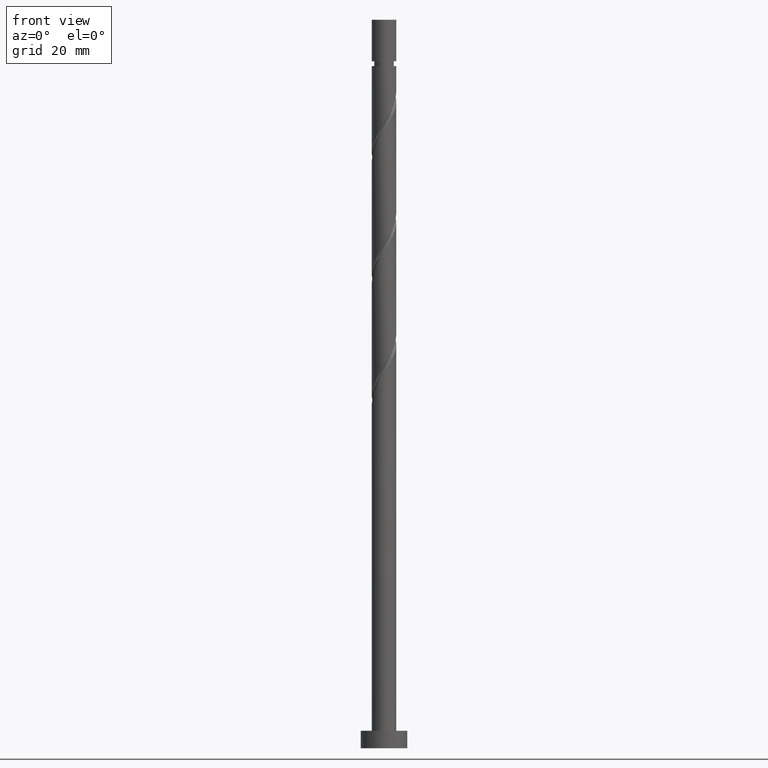
[diagram: clean part render]
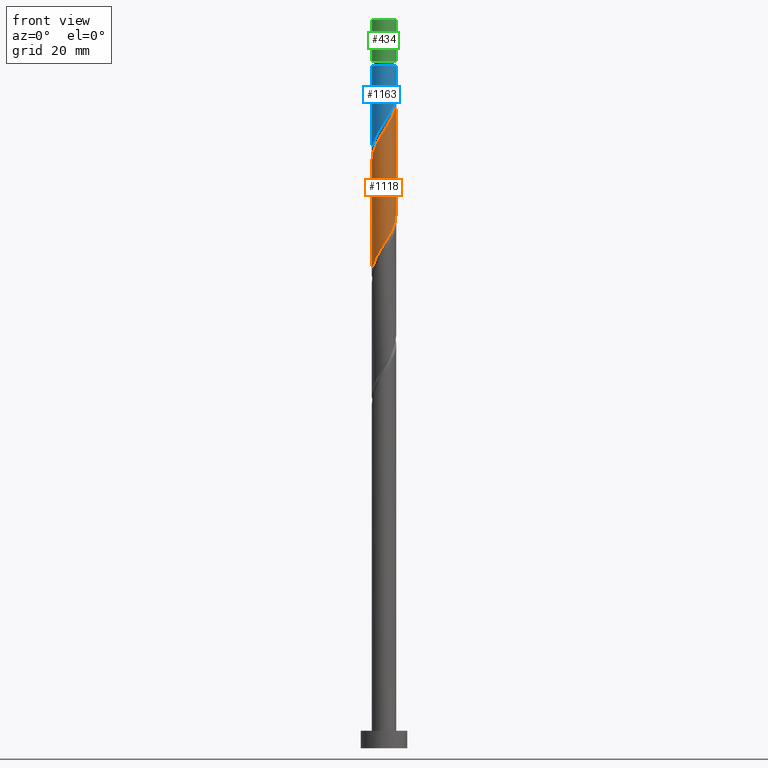
[diagram: same view with three faces highlighted in distinct colors, each labeled with its STEP entity id]
A machine part, front view with three faces highlighted in distinct colors.
Their STEP definitions:

[orange] entity #1118 — the highlighted cylindrical surface (edge-blend (fillet) strip) has radius 2.1 mm, axis along (-0, -0, -1).
#6 = CARTESIAN_POINT ( 'NONE',  ( 2.058000000000001162, -0.4178947235847809694, 91.00579383933641964 ) ) ;
#14 = CARTESIAN_POINT ( 'NONE',  ( 1.664463500085768155, -1.322947047055943237, 89.44329383933644806 ) ) ;
#22 = CARTESIAN_POINT ( 'NONE',  ( 1.419324618889668210, -1.547745982457618963, 88.92246050600309104 ) ) ;
#26 = LINE ( 'NONE', #522, #299 ) ;
#46 = CARTESIAN_POINT ( 'NONE',  ( -0.8715781159782031162, -1.910589329957617766, 104.5474605060030910 ) ) ;
#126 = CYLINDRICAL_SURFACE ( 'NONE', #1220, 2.100000000000000089 ) ;
#134 = CARTESIAN_POINT ( 'NONE',  ( 1.828137739088108171, -1.033398474414309876, 89.96412717266977666 ) ) ;
#156 = CARTESIAN_POINT ( 'NONE',  ( -0.5689704942628346362, -2.048633742055939955, 105.0682938393364338 ) ) ;
#165 = CARTESIAN_POINT ( 'NONE',  ( -1.991811978090451074, -0.7438499017726768470, 101.9432938393364623 ) ) ;
#205 = DIRECTION ( 'NONE',  ( -0.000000000000000000, -0.000000000000000000, -1.000000000000000000 ) ) ;
#224 = CARTESIAN_POINT ( 'NONE',  ( -1.033398474414309876, -1.828137739088108171, 84.75579383933646227 ) ) ;
#234 = LINE ( 'NONE', #1540, #1139 ) ;
#244 = CARTESIAN_POINT ( 'NONE',  ( 2.100000000000002309, -0.2110579412044274739, 91.33629170539887809 ) ) ;
#247 = EDGE_CURVE ( 'NONE', #1189, #564, #513, .T. ) ;
#253 = DIRECTION ( 'NONE',  ( -1.000000000000000000, 0.000000000000000000, 0.000000000000000000 ) ) ;
#258 = FACE_OUTER_BOUND ( 'NONE', #1325, .T. ) ;
#260 = CARTESIAN_POINT ( 'NONE',  ( 2.100000000000003197, 6.746896252442569669E-16, 111.1743247311995191 ) ) ;
#289 = CARTESIAN_POINT ( 'NONE',  ( -2.058000000000002938, -0.4178947235847807473, 101.4224605060030910 ) ) ;
#299 = VECTOR ( 'NONE', #755, 1000.000000000000000 ) ;
#353 = CARTESIAN_POINT ( 'NONE',  ( -2.048633742055936846, -0.5689704942628336370, 82.15162717266977666 ) ) ;
#376 = CARTESIAN_POINT ( 'NONE',  ( 2.048633742055939955, -0.5689704942628347473, 110.2766271726697624 ) ) ;
#386 = CARTESIAN_POINT ( 'NONE',  ( 0.5689704942628334150, -2.048633742055936846, 87.35996050600313367 ) ) ;
#391 = EDGE_CURVE ( 'NONE', #1189, #582, #26, .T. ) ;
#394 = CARTESIAN_POINT ( 'NONE',  ( -0.09193954539688516114, -2.124188021909553026, 86.31829383933643385 ) ) ;
#466 = CARTESIAN_POINT ( 'NONE',  ( -0.4178947235847808583, -2.058000000000001162, 85.79746050600309104 ) ) ;
#480 = VERTEX_POINT ( 'NONE', #1302 ) ;
#499 = CARTESIAN_POINT ( 'NONE',  ( 2.100000000000003642, -0.1196448486375056852, 110.9848136419922184 ) ) ;
#508 = CARTESIAN_POINT ( 'NONE',  ( 2.100000000000003197, 6.746896252442569669E-16, 111.1743247311995191 ) ) ;
#513 =( BOUNDED_CURVE ( )  B_SPLINE_CURVE ( 2, ( #850, #987, #289, #165, #1340, #861, #633, #531, #46, #156, #1445, #837, #514, #978, #969, #1117, #843, #964, #1326, #376, #1350, #499, #260 ),
 .UNSPECIFIED., .F., .T. ) 
 B_SPLINE_CURVE_WITH_KNOTS ( ( 3, 2, 2, 2, 2, 2, 2, 2, 2, 2, 2, 3 ),
 ( 0.5545322023138551382, 0.5625000000000000000, 0.5749999999999999556, 0.5875000000000000222, 0.5999999999999999778, 0.6125000000000000444, 0.6250000000000000000, 0.6374999999999999556, 0.6500000000000000222, 0.6624999999999999778, 0.6750000000000000444, 0.6795322023138553602 ),
 .UNSPECIFIED. ) 
 CURVE ( )  GEOMETRIC_REPRESENTATION_ITEM ( )  RATIONAL_B_SPLINE_CURVE ( ( 0.9039174447099406207, 0.9019565955404698077, 0.9090909090909183865, 0.8978984914501343395, 0.9090909090909183865, 0.8978984914501343395, 0.9090909090909183865, 0.8978984914501343395, 0.9090909090909183865, 0.8978984914501343395, 0.9090909090909183865, 0.8978984914501343395, 0.9090909090909183865, 0.8978984914501343395, 0.9090909090909183865, 0.8978984914501343395, 0.9090909090909183865, 0.8978984914501343395, 0.9090909090909183865, 0.8978984914501343395, 0.9090909090909183865, 0.9050328050005825853, 0.9039174447099405096 ) ) 
 REPRESENTATION_ITEM ( '' )  );
#514 = CARTESIAN_POINT ( 'NONE',  ( 0.4178947235847805808, -2.058000000000002938, 106.6307938393364481 ) ) ;
#522 = CARTESIAN_POINT ( 'NONE',  ( -2.100000000000000089, 0.000000000000000000, 125.0000000000000000 ) ) ;
#531 = CARTESIAN_POINT ( 'NONE',  ( -1.174185737693571152, -1.772544917859296465, 104.0266271726697624 ) ) ;
#564 = VERTEX_POINT ( 'NONE', #508 ) ;
#582 = VERTEX_POINT ( 'NONE', #1466 ) ;
#633 = CARTESIAN_POINT ( 'NONE',  ( -1.419324618889670875, -1.547745982457619851, 103.5057938393364338 ) ) ;
#671 = ORIENTED_EDGE ( 'NONE', *, *, #1264, .F. ) ;
#679 = CARTESIAN_POINT ( 'NONE',  ( -0.7438499017726766249, -1.991811978090447965, 85.27662717266979087 ) ) ;
#681 = CARTESIAN_POINT ( 'NONE',  ( 0.000000000000000000, 0.000000000000000000, 125.0000000000000000 ) ) ;
#755 = DIRECTION ( 'NONE',  ( -0.000000000000000000, -0.000000000000000000, -1.000000000000000000 ) ) ;
#787 = CARTESIAN_POINT ( 'NONE',  ( -1.772544917859294911, -1.174185737693569154, 83.19329383933643385 ) ) ;
#791 = CARTESIAN_POINT ( 'NONE',  ( -2.100000000000003197, -9.295723725587539688E-16, 100.7576580645328335 ) ) ;
#799 = CARTESIAN_POINT ( 'NONE',  ( -1.322947047055943015, -1.664463500085768377, 84.23496050600309104 ) ) ;
#837 = CARTESIAN_POINT ( 'NONE',  ( 0.09193954539688437011, -2.124188021909556134, 106.1099605060031195 ) ) ;
#843 = CARTESIAN_POINT ( 'NONE',  ( 1.547745982457619851, -1.419324618889670875, 108.7141271726697624 ) ) ;
#850 = CARTESIAN_POINT ( 'NONE',  ( -2.100000000000003197, -9.295723725587539688E-16, 100.7576580645328335 ) ) ;
#861 = CARTESIAN_POINT ( 'NONE',  ( -1.664463500085770375, -1.322947047055943903, 102.9849605060031337 ) ) ;
#903 = ORIENTED_EDGE ( 'NONE', *, *, #247, .F. ) ;
#921 = CARTESIAN_POINT ( 'NONE',  ( -2.100000000000000977, 2.488855062012162183E-15, 81.25392961414004844 ) ) ;
#964 = CARTESIAN_POINT ( 'NONE',  ( 1.772544917859296465, -1.174185737693571152, 109.2349605060031337 ) ) ;
#966 = CARTESIAN_POINT ( 'NONE',  ( 1.174185737693569154, -1.772544917859294911, 88.40162717266979087 ) ) ;
#969 = CARTESIAN_POINT ( 'NONE',  ( 1.033398474414310098, -1.828137739088110392, 107.6724605060030910 ) ) ;
#978 = CARTESIAN_POINT ( 'NONE',  ( 0.7438499017726768470, -1.991811978090451074, 107.1516271726697624 ) ) ;
#987 = CARTESIAN_POINT ( 'NONE',  ( -2.100000000000003642, -0.2110579412044328307, 101.0919626399406894 ) ) ;
#1034 = CARTESIAN_POINT ( 'NONE',  ( -2.086410881982745380, -0.2385154744329742726, 81.63079383933643385 ) ) ;
#1044 = CARTESIAN_POINT ( 'NONE',  ( -2.100000000000001421, -0.1196448486375048387, 81.44344070334733487 ) ) ;
#1049 = ORIENTED_EDGE ( 'NONE', *, *, #391, .T. ) ;
#1080 = CARTESIAN_POINT ( 'NONE',  ( 2.100000000000000533, 3.088579173340394367E-15, 91.67059628080669142 ) ) ;
#1117 = CARTESIAN_POINT ( 'NONE',  ( 1.322947047055943903, -1.664463500085770375, 108.1932938393364623 ) ) ;
#1118 = ADVANCED_FACE ( 'NONE', ( #258 ), #126, .T. ) ;
#1139 = VECTOR ( 'NONE', #205, 1000.000000000000000 ) ;
#1171 = CARTESIAN_POINT ( 'NONE',  ( -1.547745982457618963, -1.419324618889668210, 83.71412717266976244 ) ) ;
#1189 = VERTEX_POINT ( 'NONE', #791 ) ;
#1209 = CARTESIAN_POINT ( 'NONE',  ( 1.991811978090447965, -0.7438499017726767359, 90.48496050600311946 ) ) ;
#1220 = AXIS2_PLACEMENT_3D ( 'NONE', #681, #1504, #253 ) ;
#1264 = EDGE_CURVE ( 'NONE', #480, #582, #1481, .T. ) ;
#1280 = CARTESIAN_POINT ( 'NONE',  ( -1.910589329957616211, -0.8715781159782014509, 82.67246050600310525 ) ) ;
#1302 = CARTESIAN_POINT ( 'NONE',  ( 2.100000000000000533, 3.088579173340394367E-15, 91.67059628080670564 ) ) ;
#1309 = ORIENTED_EDGE ( 'NONE', *, *, #1428, .F. ) ;
#1325 = EDGE_LOOP ( 'NONE', ( #1309, #903, #1049, #671 ) ) ;
#1326 = CARTESIAN_POINT ( 'NONE',  ( 1.910589329957617766, -0.8715781159782031162, 109.7557938393364623 ) ) ;
#1340 = CARTESIAN_POINT ( 'NONE',  ( -1.828137739088110392, -1.033398474414310320, 102.4641271726697482 ) ) ;
#1350 = CARTESIAN_POINT ( 'NONE',  ( 2.086410881982748045, -0.2385154744329752163, 110.7974605060031053 ) ) ;
#1428 = EDGE_CURVE ( 'NONE', #564, #480, #234, .T. ) ;
#1445 = CARTESIAN_POINT ( 'NONE',  ( -0.2385154744329751331, -2.086410881982748045, 105.5891271726697482 ) ) ;
#1459 = CARTESIAN_POINT ( 'NONE',  ( 0.8715781159782014509, -1.910589329957616211, 87.88079383933643385 ) ) ;
#1466 = CARTESIAN_POINT ( 'NONE',  ( -2.100000000000000977, 2.488855062012162183E-15, 81.25392961414004844 ) ) ;
#1467 = CARTESIAN_POINT ( 'NONE',  ( 0.2385154744329740506, -2.086410881982745380, 86.83912717266976244 ) ) ;
#1481 =( BOUNDED_CURVE ( )  B_SPLINE_CURVE ( 2, ( #1080, #244, #6, #1209, #134, #14, #22, #966, #1459, #386, #1467, #394, #466, #679, #224, #799, #1171, #787, #1280, #353, #1034, #1044, #921 ),
 .UNSPECIFIED., .F., .T. ) 
 B_SPLINE_CURVE_WITH_KNOTS ( ( 3, 2, 2, 2, 2, 2, 2, 2, 2, 2, 2, 3 ),
 ( 0.5545322023138549161, 0.5625000000000000000, 0.5749999999999999556, 0.5875000000000000222, 0.5999999999999999778, 0.6125000000000000444, 0.6250000000000000000, 0.6374999999999999556, 0.6500000000000000222, 0.6624999999999999778, 0.6750000000000000444, 0.6795322023138553602 ),
 .UNSPECIFIED. ) 
 CURVE ( )  GEOMETRIC_REPRESENTATION_ITEM ( )  RATIONAL_B_SPLINE_CURVE ( ( 0.9039174447099355136, 0.9019565955404644786, 0.9090909090909131685, 0.8978984914501292325, 0.9090909090909131685, 0.8978984914501292325, 0.9090909090909131685, 0.8978984914501292325, 0.9090909090909131685, 0.8978984914501292325, 0.9090909090909131685, 0.8978984914501292325, 0.9090909090909131685, 0.8978984914501292325, 0.9090909090909131685, 0.8978984914501292325, 0.9090909090909131685, 0.8978984914501292325, 0.9090909090909131685, 0.8978984914501292325, 0.9090909090909131685, 0.9050328050005773672, 0.9039174447099352916 ) ) 
 REPRESENTATION_ITEM ( '' )  );
#1504 = DIRECTION ( 'NONE',  ( -0.000000000000000000, -0.000000000000000000, -1.000000000000000000 ) ) ;
#1540 = CARTESIAN_POINT ( 'NONE',  ( 2.100000000000000089, 2.571758278209441464E-16, 125.0000000000000000 ) ) ;

[blue] entity #1163 — the highlighted cylindrical surface (edge-blend (fillet) strip) has radius 2.1 mm, axis along (-0, -0, -1).
#1 = ORIENTED_EDGE ( 'NONE', *, *, #632, .F. ) ;
#28 = CARTESIAN_POINT ( 'NONE',  ( 0.8715781159782014509, -1.910589329957616211, 108.7141271726697482 ) ) ;
#48 = CARTESIAN_POINT ( 'NONE',  ( 1.664463500085768155, -1.322947047055943237, 110.2766271726697624 ) ) ;
#53 = CARTESIAN_POINT ( 'NONE',  ( -1.033398474414309876, -1.828137739088108171, 105.5891271726697340 ) ) ;
#67 = VERTEX_POINT ( 'NONE', #712 ) ;
#146 = VECTOR ( 'NONE', #1354, 1000.000000000000000 ) ;
#158 = CARTESIAN_POINT ( 'NONE',  ( -0.7438499017726766249, -1.991811978090447965, 106.1099605060031337 ) ) ;
#174 = CARTESIAN_POINT ( 'NONE',  ( -1.772544917859294911, -1.174185737693569154, 104.0266271726698051 ) ) ;
#198 = VERTEX_POINT ( 'NONE', #1195 ) ;
#215 = CYLINDRICAL_SURFACE ( 'NONE', #800, 2.100000000000000089 ) ;
#242 = CARTESIAN_POINT ( 'NONE',  ( 2.058000000000001162, -0.4178947235847809694, 111.8391271726697909 ) ) ;
#281 = CARTESIAN_POINT ( 'NONE',  ( -2.100000000000000089, 0.000000000000000000, 125.0000000000000000 ) ) ;
#291 = CARTESIAN_POINT ( 'NONE',  ( -2.100000000000000533, 1.424344764404550550E-15, 102.0872629474733628 ) ) ;
#309 = CARTESIAN_POINT ( 'NONE',  ( 1.174185737693569154, -1.772544917859294911, 109.2349605060031195 ) ) ;
#314 = CARTESIAN_POINT ( 'NONE',  ( -1.547745982457618963, -1.419324618889668210, 104.5474605060031053 ) ) ;
#315 = CARTESIAN_POINT ( 'NONE',  ( 0.000000000000000000, 0.000000000000000000, 117.0474605060031053 ) ) ;
#322 = EDGE_CURVE ( 'NONE', #585, #597, #1482, .T. ) ;
#366 = ORIENTED_EDGE ( 'NONE', *, *, #322, .F. ) ;
#406 = DIRECTION ( 'NONE',  ( -1.000000000000000000, 0.000000000000000000, 0.000000000000000000 ) ) ;
#408 = CARTESIAN_POINT ( 'NONE',  ( 0.2385154744329740506, -2.086410881982745380, 107.6724605060031053 ) ) ;
#473 = CIRCLE ( 'NONE', #1562, 2.099999999999998757 ) ;
#585 = VERTEX_POINT ( 'NONE', #956 ) ;
#597 = VERTEX_POINT ( 'NONE', #839 ) ;
#620 = CARTESIAN_POINT ( 'NONE',  ( -2.100000000000001421, -0.1196448486375038950, 102.2767740366806635 ) ) ;
#632 = EDGE_CURVE ( 'NONE', #597, #198, #1378, .T. ) ;
#642 = CARTESIAN_POINT ( 'NONE',  ( -1.910589329957616211, -0.8715781159782014509, 103.5057938393364481 ) ) ;
#702 = EDGE_LOOP ( 'NONE', ( #366, #836, #1185, #1 ) ) ;
#709 = CARTESIAN_POINT ( 'NONE',  ( 1.991811978090447965, -0.7438499017726767359, 111.3182938393364907 ) ) ;
#712 = CARTESIAN_POINT ( 'NONE',  ( -2.099999999999998757, 0.000000000000000000, 117.0474605060031053 ) ) ;
#724 = EDGE_CURVE ( 'NONE', #585, #67, #473, .T. ) ;
#751 = EDGE_CURVE ( 'NONE', #67, #198, #1492, .T. ) ;
#800 = AXIS2_PLACEMENT_3D ( 'NONE', #1555, #1541, #819 ) ;
#819 = DIRECTION ( 'NONE',  ( -1.000000000000000000, 0.000000000000000000, 0.000000000000000000 ) ) ;
#836 = ORIENTED_EDGE ( 'NONE', *, *, #724, .T. ) ;
#839 = CARTESIAN_POINT ( 'NONE',  ( 2.100000000000000977, 1.229434428222875386E-15, 112.5039296141400627 ) ) ;
#871 = CARTESIAN_POINT ( 'NONE',  ( 2.100000000000000089, 2.571758278209441464E-16, 125.0000000000000000 ) ) ;
#887 = CARTESIAN_POINT ( 'NONE',  ( -2.086410881982745380, -0.2385154744329742726, 102.4641271726697624 ) ) ;
#893 = CARTESIAN_POINT ( 'NONE',  ( -0.09193954539688516114, -2.124188021909553026, 107.1516271726697767 ) ) ;
#914 = DIRECTION ( 'NONE',  ( -0.000000000000000000, -0.000000000000000000, -1.000000000000000000 ) ) ;
#956 = CARTESIAN_POINT ( 'NONE',  ( 2.099999999999998757, 2.571758278209440478E-16, 117.0474605060031053 ) ) ;
#1001 = CARTESIAN_POINT ( 'NONE',  ( -0.4178947235847808583, -2.058000000000001162, 106.6307938393364338 ) ) ;
#1054 = FACE_OUTER_BOUND ( 'NONE', #702, .T. ) ;
#1163 = ADVANCED_FACE ( 'NONE', ( #1054 ), #215, .T. ) ;
#1185 = ORIENTED_EDGE ( 'NONE', *, *, #751, .T. ) ;
#1188 = CARTESIAN_POINT ( 'NONE',  ( 1.828137739088108171, -1.033398474414309876, 110.7974605060030910 ) ) ;
#1195 = CARTESIAN_POINT ( 'NONE',  ( -2.100000000000000533, 1.424344764404550550E-15, 102.0872629474733628 ) ) ;
#1229 = CARTESIAN_POINT ( 'NONE',  ( 1.419324618889668210, -1.547745982457618963, 109.7557938393364338 ) ) ;
#1263 = CARTESIAN_POINT ( 'NONE',  ( 0.5689704942628334150, -2.048633742055936846, 108.1932938393364481 ) ) ;
#1314 = CARTESIAN_POINT ( 'NONE',  ( 2.100000000000000977, 1.229434428222875386E-15, 112.5039296141400627 ) ) ;
#1354 = DIRECTION ( 'NONE',  ( -0.000000000000000000, -0.000000000000000000, -1.000000000000000000 ) ) ;
#1355 = DIRECTION ( 'NONE',  ( -0.000000000000000000, -0.000000000000000000, -1.000000000000000000 ) ) ;
#1366 = CARTESIAN_POINT ( 'NONE',  ( -1.322947047055943015, -1.664463500085768377, 105.0682938393364481 ) ) ;
#1378 =( BOUNDED_CURVE ( )  B_SPLINE_CURVE ( 2, ( #1314, #1565, #242, #709, #1188, #48, #1229, #309, #28, #1263, #408, #893, #1001, #158, #53, #1366, #314, #174, #642, #1486, #887, #620, #291 ),
 .UNSPECIFIED., .F., .T. ) 
 B_SPLINE_CURVE_WITH_KNOTS ( ( 3, 2, 2, 2, 2, 2, 2, 2, 2, 2, 2, 3 ),
 ( 0.3045322023138548606, 0.3125000000000000000, 0.3250000000000000111, 0.3375000000000000222, 0.3499999999999999778, 0.3624999999999999889, 0.3750000000000000000, 0.3875000000000000111, 0.4000000000000000222, 0.4124999999999999778, 0.4249999999999999889, 0.4295322023138553602 ),
 .UNSPECIFIED. ) 
 CURVE ( )  GEOMETRIC_REPRESENTATION_ITEM ( )  RATIONAL_B_SPLINE_CURVE ( ( 0.9039174447099356247, 0.9019565955404644786, 0.9090909090909131685, 0.8978984914501292325, 0.9090909090909131685, 0.8978984914501292325, 0.9090909090909131685, 0.8978984914501292325, 0.9090909090909131685, 0.8978984914501292325, 0.9090909090909131685, 0.8978984914501292325, 0.9090909090909131685, 0.8978984914501292325, 0.9090909090909131685, 0.8978984914501292325, 0.9090909090909131685, 0.8978984914501292325, 0.9090909090909131685, 0.8978984914501292325, 0.9090909090909131685, 0.9050328050005774783, 0.9039174447099354026 ) ) 
 REPRESENTATION_ITEM ( '' )  );
#1474 = VECTOR ( 'NONE', #1355, 1000.000000000000000 ) ;
#1482 = LINE ( 'NONE', #871, #1474 ) ;
#1486 = CARTESIAN_POINT ( 'NONE',  ( -2.048633742055936846, -0.5689704942628336370, 102.9849605060031053 ) ) ;
#1492 = LINE ( 'NONE', #281, #146 ) ;
#1541 = DIRECTION ( 'NONE',  ( -0.000000000000000000, -0.000000000000000000, -1.000000000000000000 ) ) ;
#1555 = CARTESIAN_POINT ( 'NONE',  ( 0.000000000000000000, 0.000000000000000000, 125.0000000000000000 ) ) ;
#1562 = AXIS2_PLACEMENT_3D ( 'NONE', #315, #914, #406 ) ;
#1565 = CARTESIAN_POINT ( 'NONE',  ( 2.100000000000002309, -0.2110579412044269187, 112.1696250387321925 ) ) ;

[green] entity #434 — the highlighted cylindrical surface (edge-blend (fillet) strip) has radius 2.1 mm, axis along (-0, -0, -1).
#66 = DIRECTION ( 'NONE',  ( -1.000000000000000000, 0.000000000000000000, 0.000000000000000000 ) ) ;
#87 = ORIENTED_EDGE ( 'NONE', *, *, #701, .F. ) ;
#264 = CARTESIAN_POINT ( 'NONE',  ( 0.000000000000000000, 0.000000000000000000, 117.8874605060030945 ) ) ;
#348 = VERTEX_POINT ( 'NONE', #1213 ) ;
#420 = VECTOR ( 'NONE', #996, 1000.000000000000000 ) ;
#434 = ADVANCED_FACE ( 'NONE', ( #1125 ), #1013, .T. ) ;
#476 = VERTEX_POINT ( 'NONE', #1038 ) ;
#533 = DIRECTION ( 'NONE',  ( 1.000000000000000000, 0.000000000000000000, 0.000000000000000000 ) ) ;
#556 = ORIENTED_EDGE ( 'NONE', *, *, #605, .F. ) ;
#595 = VERTEX_POINT ( 'NONE', #829 ) ;
#602 = DIRECTION ( 'NONE',  ( -0.000000000000000000, -0.000000000000000000, -1.000000000000000000 ) ) ;
#605 = EDGE_CURVE ( 'NONE', #595, #476, #1162, .T. ) ;
#655 = CARTESIAN_POINT ( 'NONE',  ( 0.000000000000000000, 0.000000000000000000, 125.0000000000000000 ) ) ;
#661 = CARTESIAN_POINT ( 'NONE',  ( -2.100000000000000089, 0.000000000000000000, 125.0000000000000000 ) ) ;
#701 = EDGE_CURVE ( 'NONE', #348, #595, #835, .T. ) ;
#722 = CARTESIAN_POINT ( 'NONE',  ( 2.100000000000000089, 2.571758278209441464E-16, 125.0000000000000000 ) ) ;
#741 = DIRECTION ( 'NONE',  ( -1.000000000000000000, 0.000000000000000000, 0.000000000000000000 ) ) ;
#744 = DIRECTION ( 'NONE',  ( 0.000000000000000000, 0.000000000000000000, 1.000000000000000000 ) ) ;
#768 = EDGE_CURVE ( 'NONE', #1392, #348, #1187, .T. ) ;
#784 = ORIENTED_EDGE ( 'NONE', *, *, #948, .T. ) ;
#815 = ORIENTED_EDGE ( 'NONE', *, *, #768, .F. ) ;
#829 = CARTESIAN_POINT ( 'NONE',  ( 2.099999999999998757, 2.571758278209440478E-16, 117.8874605060030945 ) ) ;
#835 = LINE ( 'NONE', #722, #933 ) ;
#933 = VECTOR ( 'NONE', #602, 1000.000000000000000 ) ;
#939 = AXIS2_PLACEMENT_3D ( 'NONE', #974, #744, #533 ) ;
#948 = EDGE_CURVE ( 'NONE', #1392, #476, #1005, .T. ) ;
#974 = CARTESIAN_POINT ( 'NONE',  ( 0.000000000000000000, 0.000000000000000000, 125.0000000000000000 ) ) ;
#996 = DIRECTION ( 'NONE',  ( -0.000000000000000000, -0.000000000000000000, -1.000000000000000000 ) ) ;
#1005 = LINE ( 'NONE', #1375, #420 ) ;
#1013 = CYLINDRICAL_SURFACE ( 'NONE', #1422, 2.100000000000000089 ) ;
#1038 = CARTESIAN_POINT ( 'NONE',  ( -2.099999999999998757, 0.000000000000000000, 117.8874605060030945 ) ) ;
#1125 = FACE_OUTER_BOUND ( 'NONE', #1167, .T. ) ;
#1137 = DIRECTION ( 'NONE',  ( -0.000000000000000000, -0.000000000000000000, -1.000000000000000000 ) ) ;
#1162 = CIRCLE ( 'NONE', #1506, 2.099999999999998757 ) ;
#1167 = EDGE_LOOP ( 'NONE', ( #87, #815, #784, #556 ) ) ;
#1187 = CIRCLE ( 'NONE', #939, 2.100000000000000089 ) ;
#1207 = DIRECTION ( 'NONE',  ( -0.000000000000000000, -0.000000000000000000, -1.000000000000000000 ) ) ;
#1213 = CARTESIAN_POINT ( 'NONE',  ( 2.100000000000000089, 2.571758278209441464E-16, 125.0000000000000000 ) ) ;
#1375 = CARTESIAN_POINT ( 'NONE',  ( -2.100000000000000089, 0.000000000000000000, 125.0000000000000000 ) ) ;
#1392 = VERTEX_POINT ( 'NONE', #661 ) ;
#1422 = AXIS2_PLACEMENT_3D ( 'NONE', #655, #1137, #66 ) ;
#1506 = AXIS2_PLACEMENT_3D ( 'NONE', #264, #1207, #741 ) ;